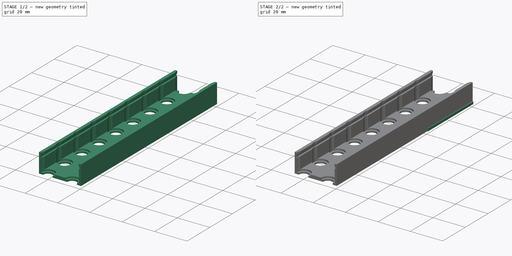
[diagram: build sequence overview — one tinted view per stage of 2, left to right]
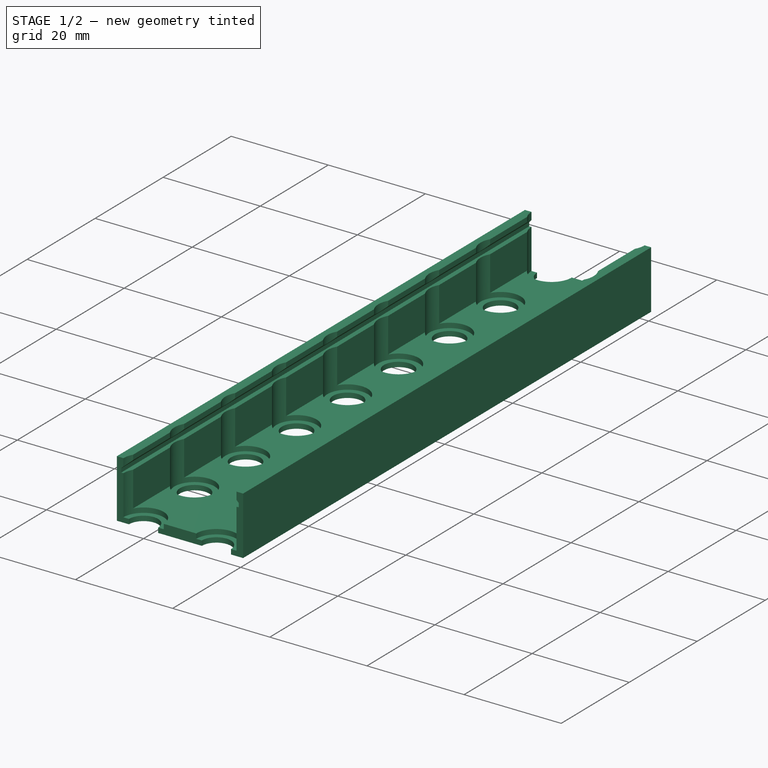
[diagram: stage 1 of 2 — iso view after this stage's code; geometry added in this stage tinted green]
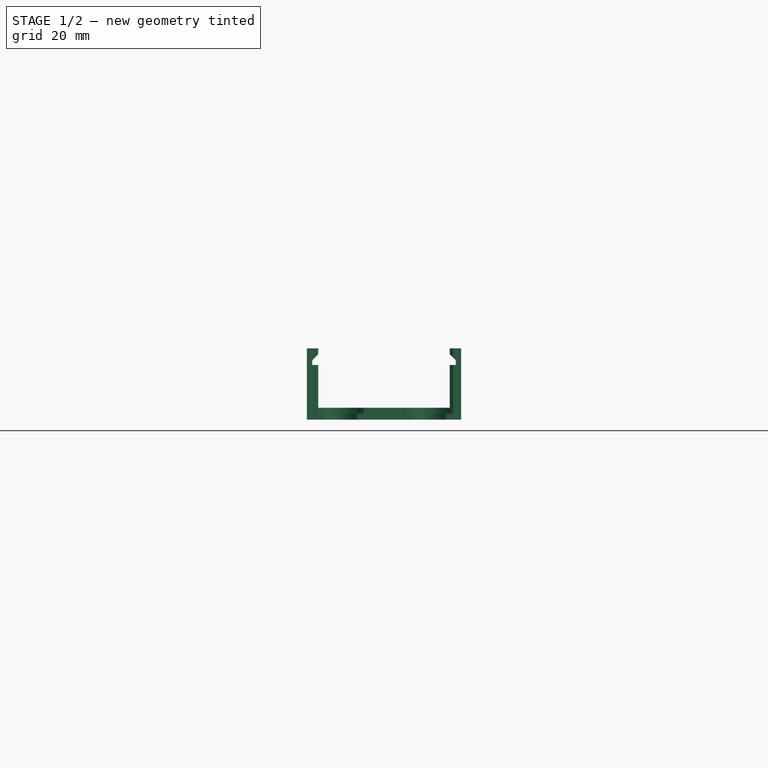
[diagram: stage 1 of 2 — front view after this stage's code; geometry added in this stage tinted green]
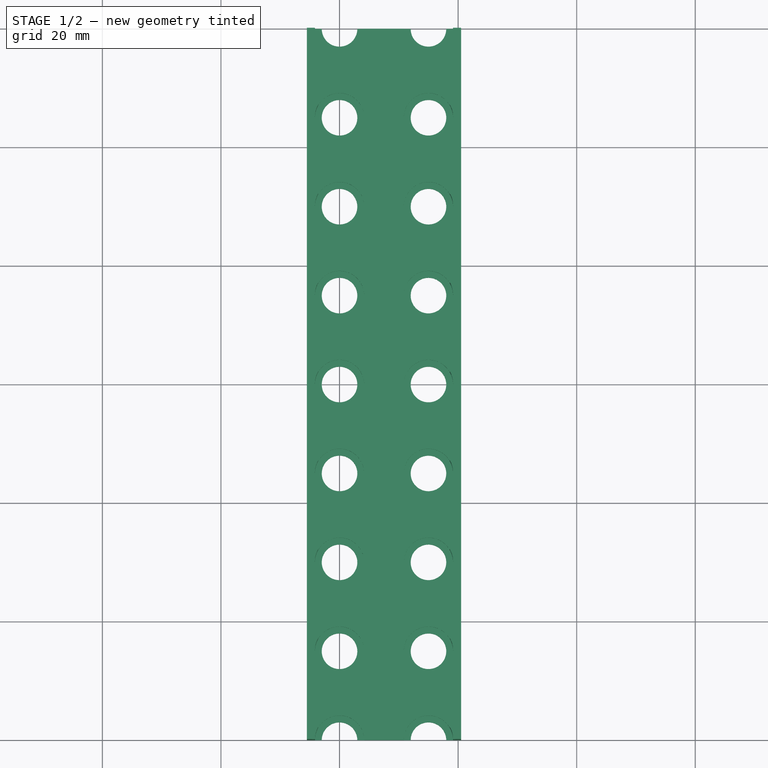
[diagram: stage 1 of 2 — top view after this stage's code; geometry added in this stage tinted green]
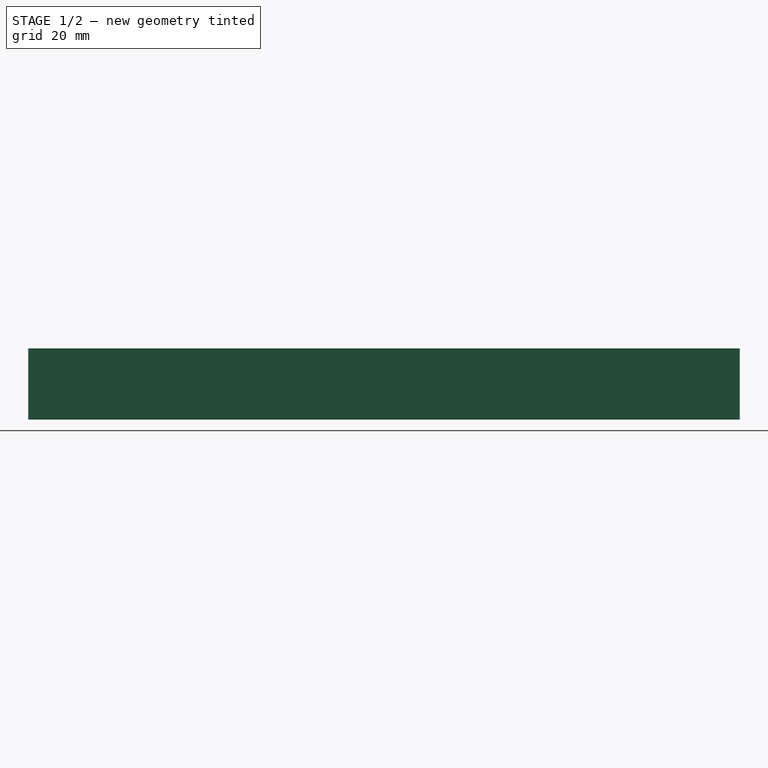
[diagram: stage 1 of 2 — right view after this stage's code; geometry added in this stage tinted green]
FCSTD DOCUMENT  (FreeCAD 0.20R29603 (Git))
Label: 24mm-strip-feeder
License: Other
objects: Sketcher::SketchObject×3, PartDesign::Pad×2, PartDesign::Plane×1, PartDesign::Hole×1, PartDesign::Body×1, Image::ImagePlane×1
note: 11 computed .brp shape members not serialized (recipe doc carries the construction recipe); baked Part::Feature solids carry a one-line shape summary decoded from their .brp

FEATURE [Sketcher::SketchObject] Sketch019
  AttachmentOffset = pos=(7.5,0,0) rot=(0,0,1;0rad)
  FullyConstrained = true
  MapMode = 5
  Placement = pos=(7.5,0,0) rot=(1,0,0;1.5708rad)
  Support = -> [XZ_Plane003]
  sketch-geometry (25):
    g0: LineSegment StartX=13 StartY=-6 StartZ=0 EndX=13 EndY=6 EndZ=0
    g1: LineSegment StartX=13 StartY=6 StartZ=0 EndX=-13 EndY=6 EndZ=0
    g2: LineSegment StartX=-13 StartY=6 StartZ=0 EndX=-13 EndY=-6 EndZ=0
    g3: LineSegment StartX=-13 StartY=-6 StartZ=0 EndX=13 EndY=-6 EndZ=0
    g4: GeomPoint X=0 Y=0 Z=0
    g5: LineSegment StartX=-11.1 StartY=-4 StartZ=0 EndX=-11.1 EndY=3.2 EndZ=0
    g6: LineSegment StartX=-11.1 StartY=6 StartZ=0 EndX=11.1 EndY=6 EndZ=0
    g7: LineSegment StartX=11.1 StartY=6 StartZ=0 EndX=11.1 EndY=4 EndZ=0
    g8: LineSegment StartX=11.1 StartY=-4 StartZ=0 EndX=-11.1 EndY=-4 EndZ=0
    g9: GeomPoint X=0 Y=1 Z=0
    g10: LineSegment StartX=-11.1 StartY=6 StartZ=0 EndX=-13 EndY=6 EndZ=0
    g11: LineSegment StartX=11.1 StartY=6 StartZ=0 EndX=13 EndY=6 EndZ=0
    g12: LineSegment StartX=-12.1 StartY=3.2 StartZ=0 EndX=-12.1 EndY=4 EndZ=0
    g13: LineSegment StartX=-12.1 StartY=4 StartZ=0 EndX=-11.1 EndY=4 EndZ=0
    g14: LineSegment StartX=12.1 StartY=4 StartZ=0 EndX=12.1 EndY=3.2 EndZ=0
    g15: LineSegment StartX=12.1 StartY=3.2 StartZ=0 EndX=11.1 EndY=3.2 EndZ=0
    g16: GeomPoint X=-4e-16 Y=3.6 Z=0
    g17: LineSegment StartX=11.1 StartY=4 StartZ=0 EndX=12.1 EndY=4 EndZ=0
    g18: LineSegment StartX=-11.1 StartY=3.2 StartZ=0 EndX=-12.1 EndY=3.2 EndZ=0
    g19: LineSegment StartX=-11.1 StartY=4 StartZ=0 EndX=-11.1 EndY=6 EndZ=0
    g20: LineSegment StartX=11.1 StartY=3.2 StartZ=0 EndX=11.1 EndY=-4 EndZ=0
    g21: LineSegment StartX=-12.1 StartY=4 StartZ=0 EndX=-11.1 EndY=5 EndZ=0
    g22: LineSegment StartX=-11.1 StartY=6 StartZ=0 EndX=-11.1 EndY=5 EndZ=0
    g23: LineSegment StartX=11.1 StartY=6 StartZ=0 EndX=11.1 EndY=5 EndZ=0
    g24: LineSegment StartX=11.1 StartY=5 StartZ=0 EndX=12.1 EndY=4 EndZ=0
  constraints (62):
    c: Coincident(g0,g1)
    c: Coincident(g1,g2)
    c: Coincident(g2,g3)
    c: Coincident(g3,g0)
    c: Horizontal(g1)
    c: Horizontal(g3)
    c: Vertical(g0)
    c: Vertical(g2)
    c: Symmetric(g1,g0,g4)
    c: Coincident(g4,g-1)
    c: Coincident(g19,g6)
    c: Coincident(g6,g7)
    c: Coincident(g20,g8)
    c: Coincident(g8,g5)
    c: Horizontal(g6)
    c: Horizontal(g8)
    c: Vertical(g5)
    c: Vertical(g7)
    c: Symmetric(g6,g5,g9)
    c: PointOnObject(g9,g-2)
    c: PointOnObject(g7,g1)
    c: Coincident(g10,g19)
    c: Coincident(g10,g2)
    c: Coincident(g11,g7)
    c: Coincident(g11,g0)
    c: Coincident(g12,g13)
    c: Coincident(g17,g14)
    c: Coincident(g14,g15)
    c: Coincident(g18,g12)
    c: Horizontal(g15)
    c: Vertical(g12)
    c: Vertical(g14)
    c: Symmetric(g17,g12,g16)
    c: Coincident(g5,g18)
    c: Coincident(g19,g13)
    c: Coincident(g7,g17)
    c: Coincident(g20,g15)
    c: Vertical(g19)
    c: Tangent(g17,g13)
    c: Tangent(g18,g15)
    c: Symmetric(g12,g14,g-2)
    c: Vertical(g5,g13)
    c: Vertical(g15,g7)
    c: Vertical(g20)
    c: DistanceY(g2,g5) = 2
    c: DistanceX(g12,g14) = 24.2
    c: DistanceY(g14,g14) = 0.8
    c: DistanceY(g2,g13) = 10
    c: DistanceY(g2,g2) = 12
    c: DistanceX(g2,g0) = 26
    c: DistanceX(g2,g5) = 1.9
    c: DistanceX(g18,g18) = 1
    c: Coincident(g21,g12)
    c: PointOnObject(g21,g19)
    c: Coincident(g22,g10)
    c: Coincident(g22,g21)
    c: Coincident(g23,g11)
    c: PointOnObject(g23,g7)
    c: Coincident(g24,g23)
    c: Coincident(g24,g14)
    c: Horizontal(g23,g21)
    c: Angle(g12,g21) = 2.35619
FEATURE [PartDesign::Pad] Pad006
  Direction = (0,-1,-2e-16)
  Length = 120
  Length2 = 10
  Placement = pos=(0,0,0) rot=(1,0,0;1.5708rad)
  Profile = -> Sketch019
  ReferenceAxis = -> Sketch019 [N_Axis]
  Type = 0
FEATURE [PartDesign::Plane] DatumPlane003
  AttachmentOffset = pos=(0,0,-6) rot=(0,0,1;0rad)
  Length = 67.0294
  MapMode = 5
  Placement = pos=(0,0,-6) rot=(0,0,1;0rad)
  ResizeMode = 0
  Support = -> [XY_Plane005]
  Width = 162.029
FEATURE [Sketcher::SketchObject] Sketch016  label="CounterBoreHoles004"
  AttachmentOffset = pos=(-15,-200.5,6) rot=(0,0,1;0rad)
  FullyConstrained = true
  MapMode = 5
  Placement = pos=(-15,-200.5,6) rot=(0,0,1;0rad)
  Support = -> [XY_Plane005]
  sketch-geometry (166):
    g0: Circle CenterX=15 CenterY=35.5 CenterZ=0 NormalX=0 NormalY=0 NormalZ=1 AngleXU=0 Radius=3
    g1: Circle CenterX=45 CenterY=35.5 CenterZ=0 NormalX=0 NormalY=0 NormalZ=1 AngleXU=0 Radius=3
    g2: Circle CenterX=75 CenterY=35.5 CenterZ=0 NormalX=0 NormalY=0 NormalZ=1 AngleXU=0 Radius=3
    g3: Circle CenterX=15 CenterY=65.5 CenterZ=0 NormalX=0 NormalY=0 NormalZ=1 AngleXU=0 Radius=3
    g4: Circle CenterX=45 CenterY=65.5 CenterZ=0 NormalX=0 NormalY=0 NormalZ=1 AngleXU=0 Radius=3
    g5: Circle CenterX=75 CenterY=65.5 CenterZ=0 NormalX=0 NormalY=0 NormalZ=1 AngleXU=0 Radius=3
    g6: LineSegment StartX=15 StartY=35.5 StartZ=0 EndX=15 EndY=65.5 EndZ=0
    g7: Circle CenterX=30 CenterY=20.5 CenterZ=0 NormalX=0 NormalY=0 NormalZ=1 AngleXU=0 Radius=3
    g8: Circle CenterX=60 CenterY=20.5 CenterZ=0 NormalX=0 NormalY=0 NormalZ=1 AngleXU=0 Radius=3
    g9: Circle CenterX=60 CenterY=50.5 CenterZ=0 NormalX=0 NormalY=0 NormalZ=1 AngleXU=0 Radius=3
    g10: Circle CenterX=30 CenterY=50.5 CenterZ=0 NormalX=0 NormalY=0 NormalZ=1 AngleXU=0 Radius=3
    g11: LineSegment StartX=30 StartY=20.5 StartZ=0 EndX=30 EndY=50.5 EndZ=0
    g12: Circle CenterX=90 CenterY=50.5 CenterZ=0 NormalX=0 NormalY=0 NormalZ=1 AngleXU=0 Radius=3
    g13: Circle CenterX=105 CenterY=65.5 CenterZ=0 NormalX=0 NormalY=0 NormalZ=1 AngleXU=0 Radius=3
    g14: Circle CenterX=90 CenterY=20.5 CenterZ=0 NormalX=0 NormalY=0 NormalZ=1 AngleXU=0 Radius=3
    g15: Circle CenterX=105 CenterY=35.5 CenterZ=0 NormalX=0 NormalY=0 NormalZ=1 AngleXU=0 Radius=3
    g16: Circle CenterX=30 CenterY=80.5 CenterZ=0 NormalX=0 NormalY=0 NormalZ=1 AngleXU=0 Radius=3
    g17: Circle CenterX=60 CenterY=80.5 CenterZ=0 NormalX=0 NormalY=0 NormalZ=1 AngleXU=0 Radius=3
    g18: Circle CenterX=90 CenterY=80.5 CenterZ=0 NormalX=0 NormalY=0 NormalZ=1 AngleXU=0 Radius=3
    g19: LineSegment StartX=30 StartY=80.5 StartZ=0 EndX=30 EndY=50.5 EndZ=0
    g20: LineSegment StartX=15 StartY=35.5 StartZ=0 EndX=45 EndY=35.5 EndZ=0
    g21: LineSegment StartX=105 StartY=35.5 StartZ=0 EndX=75 EndY=35.5 EndZ=0
    g22: LineSegment StartX=45 StartY=35.5 StartZ=0 EndX=75 EndY=35.5 EndZ=0
    g23: LineSegment StartX=30 StartY=20.5 StartZ=0 EndX=60 EndY=20.5 EndZ=0
    g24: LineSegment StartX=90 StartY=20.5 StartZ=0 EndX=60 EndY=20.5 EndZ=0
    g25: LineSegment StartX=15 StartY=0 StartZ=0 EndX=15 EndY=80.5 EndZ=0
    g26: Circle CenterX=15 CenterY=95.5 CenterZ=0 NormalX=0 NormalY=0 NormalZ=1 AngleXU=0 Radius=3
    g27: Circle CenterX=45 CenterY=95.5 CenterZ=0 NormalX=0 NormalY=0 NormalZ=1 AngleXU=0 Radius=3
    g28: Circle CenterX=75 CenterY=95.5 CenterZ=0 NormalX=0 NormalY=0 NormalZ=1 AngleXU=0 Radius=3
    g29: Circle CenterX=105 CenterY=95.5 CenterZ=0 NormalX=0 NormalY=0 NormalZ=1 AngleXU=0 Radius=3
    g30: Circle CenterX=30 CenterY=110.5 CenterZ=0 NormalX=0 NormalY=0 NormalZ=1 AngleXU=0 Radius=3
    g31: Circle CenterX=60 CenterY=110.5 CenterZ=0 NormalX=0 NormalY=0 NormalZ=1 AngleXU=0 Radius=3
    g32: Circle CenterX=90 CenterY=110.5 CenterZ=0 NormalX=0 NormalY=0 NormalZ=1 AngleXU=0 Radius=3
    g33: Circle CenterX=15 CenterY=125.5 CenterZ=0 NormalX=0 NormalY=0 NormalZ=1 AngleXU=0 Radius=3
    g34: Circle CenterX=45 CenterY=125.5 CenterZ=0 NormalX=0 NormalY=0 NormalZ=1 AngleXU=0 Radius=3
    g35: Circle CenterX=75 CenterY=125.5 CenterZ=0 NormalX=0 NormalY=0 NormalZ=1 AngleXU=0 Radius=3
    g36: Circle CenterX=105 CenterY=125.5 CenterZ=0 NormalX=0 NormalY=0 NormalZ=1 AngleXU=0 Radius=3
    g37: LineSegment StartX=15 StartY=65.5 StartZ=0 EndX=15 EndY=95.5 EndZ=0
    g38: LineSegment StartX=15 StartY=95.5 StartZ=0 EndX=15 EndY=125.5 EndZ=0
    g39: LineSegment StartX=30 StartY=80.5 StartZ=0 EndX=30 EndY=110.5 EndZ=0
    g40: Circle CenterX=15 CenterY=155.5 CenterZ=0 NormalX=0 NormalY=0 NormalZ=1 AngleXU=0 Radius=3
    g41: Circle CenterX=45 CenterY=155.5 CenterZ=0 NormalX=0 NormalY=0 NormalZ=1 AngleXU=0 Radius=3
    g42: Circle CenterX=75 CenterY=155.5 CenterZ=0 NormalX=0 NormalY=0 NormalZ=1 AngleXU=0 Radius=3
    g43: LineSegment StartX=15 StartY=125.5 StartZ=0 EndX=15 EndY=155.5 EndZ=0
    g44: Circle CenterX=60 CenterY=140.5 CenterZ=0 NormalX=0 NormalY=0 NormalZ=1 AngleXU=0 Radius=3
    g45: Circle CenterX=30 CenterY=140.5 CenterZ=0 NormalX=0 NormalY=0 NormalZ=1 AngleXU=0 Radius=3
    g46: LineSegment StartX=30 StartY=110.5 StartZ=0 EndX=30 EndY=140.5 EndZ=0
    g47: Circle CenterX=90 CenterY=140.5 CenterZ=0 NormalX=0 NormalY=0 NormalZ=1 AngleXU=0 Radius=3
    g48: Circle CenterX=105 CenterY=155.5 CenterZ=0 NormalX=0 NormalY=0 NormalZ=1 AngleXU=0 Radius=3
    g49: Circle CenterX=30 CenterY=170.5 CenterZ=0 NormalX=0 NormalY=0 NormalZ=1 AngleXU=0 Radius=3
    g50: Circle CenterX=60 CenterY=170.5 CenterZ=0 NormalX=0 NormalY=0 NormalZ=1 AngleXU=0 Radius=3
    g51: Circle CenterX=90 CenterY=170.5 CenterZ=0 NormalX=0 NormalY=0 NormalZ=1 AngleXU=0 Radius=3
    g52: LineSegment StartX=30 StartY=170.5 StartZ=0 EndX=30 EndY=140.5 EndZ=0
    g53: Circle CenterX=15 CenterY=185.5 CenterZ=0 NormalX=0 NormalY=0 NormalZ=1 AngleXU=0 Radius=3
    g54: Circle CenterX=45 CenterY=185.5 CenterZ=0 NormalX=0 NormalY=0 NormalZ=1 AngleXU=0 Radius=3
    g55: Circle CenterX=75 CenterY=185.5 CenterZ=0 NormalX=0 NormalY=0 NormalZ=1 AngleXU=0 Radius=3
    g56: Circle CenterX=105 CenterY=185.5 CenterZ=0 NormalX=0 NormalY=0 NormalZ=1 AngleXU=0 Radius=3
    g57: Circle CenterX=30 CenterY=200.5 CenterZ=0 NormalX=0 NormalY=0 NormalZ=1 AngleXU=0 Radius=3
    g58: Circle CenterX=60 CenterY=200.5 CenterZ=0 NormalX=0 NormalY=0 NormalZ=1 AngleXU=0 Radius=3
    g59: Circle CenterX=90 CenterY=200.5 CenterZ=0 NormalX=0 NormalY=0 NormalZ=1 AngleXU=0 Radius=3
    g60: Circle CenterX=15 CenterY=215.5 CenterZ=0 NormalX=0 NormalY=0 NormalZ=1 AngleXU=0 Radius=3
    g61: Circle CenterX=45 CenterY=215.5 CenterZ=0 NormalX=0 NormalY=0 NormalZ=1 AngleXU=0 Radius=3
    g62: Circle CenterX=75 CenterY=215.5 CenterZ=0 NormalX=0 NormalY=0 NormalZ=1 AngleXU=0 Radius=3
    g63: Circle CenterX=105 CenterY=215.5 CenterZ=0 NormalX=0 NormalY=0 NormalZ=1 AngleXU=0 Radius=3
    g64: LineSegment StartX=15 StartY=155.5 StartZ=0 EndX=15 EndY=185.5 EndZ=0
    g65: LineSegment StartX=15 StartY=185.5 StartZ=0 EndX=15 EndY=215.5 EndZ=0
    g66: LineSegment StartX=30 StartY=170.5 StartZ=0 EndX=30 EndY=200.5 EndZ=0
    g67: Circle CenterX=120 CenterY=50.5 CenterZ=0 NormalX=0 NormalY=0 NormalZ=1 AngleXU=0 Radius=3
    g68: Circle CenterX=120 CenterY=20.5 CenterZ=0 NormalX=0 NormalY=0 NormalZ=1 AngleXU=0 Radius=3
    g69: Circle CenterX=120 CenterY=80.5 CenterZ=0 NormalX=0 NormalY=0 NormalZ=1 AngleXU=0 Radius=3
    g70: LineSegment StartX=120 StartY=20.5 StartZ=0 EndX=90 EndY=20.5 EndZ=0
    g71: Circle CenterX=120 CenterY=110.5 CenterZ=0 NormalX=0 NormalY=0 NormalZ=1 AngleXU=0 Radius=3
    g72: Circle CenterX=120 CenterY=140.5 CenterZ=0 NormalX=0 NormalY=0 NormalZ=1 AngleXU=0 Radius=3
    g73: Circle CenterX=120 CenterY=170.5 CenterZ=0 NormalX=0 NormalY=0 NormalZ=1 AngleXU=0 Radius=3
    g74: Circle CenterX=120 CenterY=200.5 CenterZ=0 NormalX=0 NormalY=0 NormalZ=1 AngleXU=0 Radius=3
    g75: Circle CenterX=0 CenterY=50.5 CenterZ=0 NormalX=0 NormalY=0 NormalZ=1 AngleXU=0 Radius=3
    g76: Circle CenterX=0 CenterY=20.5 CenterZ=0 NormalX=0 NormalY=0 NormalZ=1 AngleXU=0 Radius=3
    g77: Circle CenterX=0 CenterY=80.5 CenterZ=0 NormalX=0 NormalY=0 NormalZ=1 AngleXU=0 Radius=3
    g78: Circle CenterX=0 CenterY=110.5 CenterZ=0 NormalX=0 NormalY=0 NormalZ=1 AngleXU=0 Radius=3
    g79: Circle CenterX=0 CenterY=140.5 CenterZ=0 NormalX=0 NormalY=0 NormalZ=1 AngleXU=0 Radius=3
    g80: Circle CenterX=0 CenterY=170.5 CenterZ=0 NormalX=0 NormalY=0 NormalZ=1 AngleXU=0 Radius=3
    g81: Circle CenterX=0 CenterY=200.5 CenterZ=0 NormalX=0 NormalY=0 NormalZ=1 AngleXU=0 Radius=3
    g82: GeomPoint X=15 Y=5.5 Z=0
    g83: Circle CenterX=15 CenterY=20.5 CenterZ=0 NormalX=0 NormalY=0 NormalZ=1 AngleXU=0 Radius=3
    g84: Circle CenterX=45 CenterY=20.5 CenterZ=0 NormalX=0 NormalY=0 NormalZ=1 AngleXU=0 Radius=3
    g85: Circle CenterX=75 CenterY=20.5 CenterZ=0 NormalX=0 NormalY=0 NormalZ=1 AngleXU=0 Radius=3
    g86: Circle CenterX=15 CenterY=50.5 CenterZ=0 NormalX=0 NormalY=0 NormalZ=1 AngleXU=0 Radius=3
    g87: Circle CenterX=45 CenterY=50.5 CenterZ=0 NormalX=0 NormalY=0 NormalZ=1 AngleXU=0 Radius=3
    g88: Circle CenterX=75 CenterY=50.5 CenterZ=0 NormalX=0 NormalY=0 NormalZ=1 AngleXU=0 Radius=3
    g89: LineSegment StartX=15 StartY=20.5 StartZ=0 EndX=15 EndY=50.5 EndZ=0
    g90: Circle CenterX=30 CenterY=5.5 CenterZ=0 NormalX=0 NormalY=0 NormalZ=1 AngleXU=0 Radius=3
    g91: Circle CenterX=60 CenterY=5.5 CenterZ=0 NormalX=0 NormalY=0 NormalZ=1 AngleXU=0 Radius=3
    g92: Circle CenterX=60 CenterY=35.5 CenterZ=0 NormalX=0 NormalY=0 NormalZ=1 AngleXU=0 Radius=3
    g93: Circle CenterX=30 CenterY=35.5 CenterZ=0 NormalX=0 NormalY=0 NormalZ=1 AngleXU=0 Radius=3
    g94: LineSegment StartX=30 StartY=5.5 StartZ=0 EndX=30 EndY=35.5 EndZ=0
    g95: Circle CenterX=90 CenterY=35.5 CenterZ=0 NormalX=0 NormalY=0 NormalZ=1 AngleXU=0 Radius=3
    g96: Circle CenterX=105 CenterY=50.5 CenterZ=0 NormalX=0 NormalY=0 NormalZ=1 AngleXU=0 Radius=3
    g97: Circle CenterX=90 CenterY=5.5 CenterZ=0 NormalX=0 NormalY=0 NormalZ=1 AngleXU=0 Radius=3
    g98: Circle CenterX=105 CenterY=20.5 CenterZ=0 NormalX=0 NormalY=0 NormalZ=1 AngleXU=0 Radius=3
    g99: Circle CenterX=30 CenterY=65.5 CenterZ=0 NormalX=0 NormalY=0 NormalZ=1 AngleXU=0 Radius=3
    g100: Circle CenterX=60 CenterY=65.5 CenterZ=0 NormalX=0 NormalY=0 NormalZ=1 AngleXU=0 Radius=3
    g101: Circle CenterX=90 CenterY=65.5 CenterZ=0 NormalX=0 NormalY=0 NormalZ=1 AngleXU=0 Radius=3
    g102: LineSegment StartX=30 StartY=65.5 StartZ=0 EndX=30 EndY=35.5 EndZ=0
    g103: LineSegment StartX=15 StartY=20.5 StartZ=0 EndX=45 EndY=20.5 EndZ=0
    g104: LineSegment StartX=105 StartY=20.5 StartZ=0 EndX=75 EndY=20.5 EndZ=0
    g105: LineSegment StartX=45 StartY=20.5 StartZ=0 EndX=75 EndY=20.5 EndZ=0
    g106: LineSegment StartX=30 StartY=5.5 StartZ=0 EndX=60 EndY=5.5 EndZ=0
    g107: LineSegment StartX=90 StartY=5.5 StartZ=0 EndX=60 EndY=5.5 EndZ=0
    g108: LineSegment StartX=15 StartY=-9.5 StartZ=0 EndX=15 EndY=65.5 EndZ=0
    g109: Circle CenterX=15 CenterY=80.5 CenterZ=0 NormalX=0 NormalY=0 NormalZ=1 AngleXU=0 Radius=3
    g110: Circle CenterX=45 CenterY=80.5 CenterZ=0 NormalX=0 NormalY=0 NormalZ=1 AngleXU=0 Radius=3
    g111: Circle CenterX=75 CenterY=80.5 CenterZ=0 NormalX=0 NormalY=0 NormalZ=1 AngleXU=0 Radius=3
    g112: Circle CenterX=105 CenterY=80.5 CenterZ=0 NormalX=0 NormalY=0 NormalZ=1 AngleXU=0 Radius=3
    g113: Circle CenterX=30 CenterY=95.5 CenterZ=0 NormalX=0 NormalY=0 NormalZ=1 AngleXU=0 Radius=3
    g114: Circle CenterX=60 CenterY=95.5 CenterZ=0 NormalX=0 NormalY=0 NormalZ=1 AngleXU=0 Radius=3
    g115: Circle CenterX=90 CenterY=95.5 CenterZ=0 NormalX=0 NormalY=0 NormalZ=1 AngleXU=0 Radius=3
    g116: Circle CenterX=15 CenterY=110.5 CenterZ=0 NormalX=0 NormalY=0 NormalZ=1 AngleXU=0 Radius=3
    g117: Circle CenterX=45 CenterY=110.5 CenterZ=0 NormalX=0 NormalY=0 NormalZ=1 AngleXU=0 Radius=3
    g118: Circle CenterX=75 CenterY=110.5 CenterZ=0 NormalX=0 NormalY=0 NormalZ=1 AngleXU=0 Radius=3
    g119: Circle CenterX=105 CenterY=110.5 CenterZ=0 NormalX=0 NormalY=0 NormalZ=1 AngleXU=0 Radius=3
    g120: LineSegment StartX=15 StartY=50.5 StartZ=0 EndX=15 EndY=80.5 EndZ=0
    g121: LineSegment StartX=15 StartY=80.5 StartZ=0 EndX=15 EndY=110.5 EndZ=0
    g122: LineSegment StartX=30 StartY=65.5 StartZ=0 EndX=30 EndY=95.5 EndZ=0
    g123: Circle CenterX=15 CenterY=140.5 CenterZ=0 NormalX=0 NormalY=0 NormalZ=1 AngleXU=0 Radius=3
    g124: Circle CenterX=45 CenterY=140.5 CenterZ=0 NormalX=0 NormalY=0 NormalZ=1 AngleXU=0 Radius=3
    g125: Circle CenterX=75 CenterY=140.5 CenterZ=0 NormalX=0 NormalY=0 NormalZ=1 AngleXU=0 Radius=3
    g126: LineSegment StartX=15 StartY=110.5 StartZ=0 EndX=15 EndY=140.5 EndZ=0
    g127: Circle CenterX=60 CenterY=125.5 CenterZ=0 NormalX=0 NormalY=0 NormalZ=1 AngleXU=0 Radius=3
    g128: Circle CenterX=30 CenterY=125.5 CenterZ=0 NormalX=0 NormalY=0 NormalZ=1 AngleXU=0 Radius=3
    g129: LineSegment StartX=30 StartY=95.5 StartZ=0 EndX=30 EndY=125.5 EndZ=0
    g130: Circle CenterX=90 CenterY=125.5 CenterZ=0 NormalX=0 NormalY=0 NormalZ=1 AngleXU=0 Radius=3
    g131: Circle CenterX=105 CenterY=140.5 CenterZ=0 NormalX=0 NormalY=0 NormalZ=1 AngleXU=0 Radius=3
    g132: Circle CenterX=30 CenterY=155.5 CenterZ=0 NormalX=0 NormalY=0 NormalZ=1 AngleXU=0 Radius=3
    g133: Circle CenterX=60 CenterY=155.5 CenterZ=0 NormalX=0 NormalY=0 NormalZ=1 AngleXU=0 Radius=3
    g134: Circle CenterX=90 CenterY=155.5 CenterZ=0 NormalX=0 NormalY=0 NormalZ=1 AngleXU=0 Radius=3
    g135: LineSegment StartX=30 StartY=155.5 StartZ=0 EndX=30 EndY=125.5 EndZ=0
    g136: Circle CenterX=15 CenterY=170.5 CenterZ=0 NormalX=0 NormalY=0 NormalZ=1 AngleXU=0 Radius=3
    g137: Circle CenterX=45 CenterY=170.5 CenterZ=0 NormalX=0 NormalY=0 NormalZ=1 AngleXU=0 Radius=3
    g138: Circle CenterX=75 CenterY=170.5 CenterZ=0 NormalX=0 NormalY=0 NormalZ=1 AngleXU=0 Radius=3
    g139: Circle CenterX=105 CenterY=170.5 CenterZ=0 NormalX=0 NormalY=0 NormalZ=1 AngleXU=0 Radius=3
    g140: Circle CenterX=30 CenterY=185.5 CenterZ=0 NormalX=0 NormalY=0 NormalZ=1 AngleXU=0 Radius=3
    g141: Circle CenterX=60 CenterY=185.5 CenterZ=0 NormalX=0 NormalY=0 NormalZ=1 AngleXU=0 Radius=3
    g142: Circle CenterX=90 CenterY=185.5 CenterZ=0 NormalX=0 NormalY=0 NormalZ=1 AngleXU=0 Radius=3
    g143: Circle CenterX=15 CenterY=200.5 CenterZ=0 NormalX=0 NormalY=0 NormalZ=1 AngleXU=0 Radius=3
    g144: Circle CenterX=45 CenterY=200.5 CenterZ=0 NormalX=0 NormalY=0 NormalZ=1 AngleXU=0 Radius=3
    g145: Circle CenterX=75 CenterY=200.5 CenterZ=0 NormalX=0 NormalY=0 NormalZ=1 AngleXU=0 Radius=3
    g146: Circle CenterX=105 CenterY=200.5 CenterZ=0 NormalX=0 NormalY=0 NormalZ=1 AngleXU=0 Radius=3
    g147: LineSegment StartX=15 StartY=140.5 StartZ=0 EndX=15 EndY=170.5 EndZ=0
    g148: LineSegment StartX=15 StartY=170.5 StartZ=0 EndX=15 EndY=200.5 EndZ=0
    g149: LineSegment StartX=30 StartY=155.5 StartZ=0 EndX=30 EndY=185.5 EndZ=0
    g150: Circle CenterX=120 CenterY=35.5 CenterZ=0 NormalX=0 NormalY=0 NormalZ=1 AngleXU=0 Radius=3
    g151: Circle CenterX=120 CenterY=5.5 CenterZ=0 NormalX=0 NormalY=0 NormalZ=1 AngleXU=0 Radius=3
    g152: Circle CenterX=120 CenterY=65.5 CenterZ=0 NormalX=0 NormalY=0 NormalZ=1 AngleXU=0 Radius=3
    g153: LineSegment StartX=120 StartY=5.5 StartZ=0 EndX=90 EndY=5.5 EndZ=0
    g154: Circle CenterX=120 CenterY=95.5 CenterZ=0 NormalX=0 NormalY=0 NormalZ=1 AngleXU=0 Radius=3
    g155: Circle CenterX=120 CenterY=125.5 CenterZ=0 NormalX=0 NormalY=0 NormalZ=1 AngleXU=0 Radius=3
    g156: Circle CenterX=120 CenterY=155.5 CenterZ=0 NormalX=0 NormalY=0 NormalZ=1 AngleXU=0 Radius=3
    g157: Circle CenterX=120 CenterY=185.5 CenterZ=0 NormalX=0 NormalY=0 NormalZ=1 AngleXU=0 Radius=3
    g158: Circle CenterX=0 CenterY=35.5 CenterZ=0 NormalX=0 NormalY=0 NormalZ=1 AngleXU=0 Radius=3
    g159: Circle CenterX=0 CenterY=5.5 CenterZ=0 NormalX=0 NormalY=0 NormalZ=1 AngleXU=0 Radius=3
    g160: Circle CenterX=0 CenterY=65.5 CenterZ=0 NormalX=0 NormalY=0 NormalZ=1 AngleXU=0 Radius=3
    g161: Circle CenterX=0 CenterY=95.5 CenterZ=0 NormalX=0 NormalY=0 NormalZ=1 AngleXU=0 Radius=3
    g162: Circle CenterX=0 CenterY=125.5 CenterZ=0 NormalX=0 NormalY=0 NormalZ=1 AngleXU=0 Radius=3
    g163: Circle CenterX=0 CenterY=155.5 CenterZ=0 NormalX=0 NormalY=0 NormalZ=1 AngleXU=0 Radius=3
    g164: Circle CenterX=0 CenterY=185.5 CenterZ=0 NormalX=0 NormalY=0 NormalZ=1 AngleXU=0 Radius=3
    g165: GeomPoint X=15 Y=-9.5 Z=0
  constraints (461):
    c: Equal(g0,g1)
    c: Horizontal(g0,g1)
    c: Horizontal(g1,g2)
    c: Horizontal(g3,g4)
    c: Horizontal(g4,g5)
    c: Vertical(g0,g3)
    c: Vertical(g1,g4)
    c: Vertical(g2,g5)
    c: Equal(g2,g5)
    c: Coincident(g6,g0)
    c: Coincident(g6,g3)
    c: Vertical(g7,g10)
    c: Vertical(g8,g9)
    c: Equal(g8,g9)
    c: Equal(g8,g7)
    c: Equal(g7,g10)
    c: Horizontal(g7,g8)
    c: Horizontal(g10,g9)
    c: Coincident(g11,g7)
    c: Coincident(g11,g10)
    c: Equal(g7,g1)
    c: Equal(g1,g2)
    c: Horizontal(g14,g8)
    c: Horizontal(g2,g15)
    c: Horizontal(g9,g12)
    c: Horizontal(g5,g13)
    c: Vertical(g14,g12)
    c: Vertical(g15,g13)
    c: Equal(g14,g15)
    c: Equal(g15,g12)
    c: Equal(g12,g13)
    c: Equal(g13,g5)
    c: Equal(g4,g3)
    c: Equal(g3,g5)
    c: Equal(g6,g11)
    c: Horizontal(g16,g17)
    c: Horizontal(g17,g18)
    c: Coincident(g19,g16)
    c: Coincident(g19,g10)
    c: Equal(g19,g6)
    c: Vertical(g10,g16)
    c: Equal(g16,g17)
    c: Equal(g17,g18)
    c: Equal(g18,g5)
    c: Vertical(g17,g9)
    c: Vertical(g12,g18)
    c: Coincident(g20,g0)
    c: Coincident(g20,g1)
    c: Coincident(g21,g15)
    c: Coincident(g21,g2)
    c: Coincident(g22,g1)
    c: Coincident(g22,g2)
    c: Coincident(g23,g7)
    c: Coincident(g23,g8)
    c: Coincident(g24,g14)
    c: Coincident(g24,g8)
    c: Equal(g20,g22)
    c: Equal(g22,g21)
    c: Equal(g20,g23)
    c: Equal(g23,g24)
    c: PointOnObject(g25,g-1)
    c: Vertical(g25)
    c: Horizontal(g16,g25)
    c: DistanceX(g-1,g25) = 15
    c: Horizontal(g26,g27)
    c: Horizontal(g27,g28)
    c: Horizontal(g28,g29)
    c: Horizontal(g30,g31)
    c: Horizontal(g31,g32)
    c: Horizontal(g33,g34)
    c: Horizontal(g34,g35)
    c: Horizontal(g35,g36)
    c: Coincident(g37,g3)
    c: Coincident(g37,g26)
    c: Vertical(g37)
    c: Coincident(g38,g26)
    c: Coincident(g38,g33)
    c: Coincident(g39,g16)
    c: Coincident(g39,g30)
    c: Vertical(g30,g16)
    c: Vertical(g3,g33)
    c: Vertical(g4,g27)
    c: Vertical(g27,g34)
    c: Vertical(g17,g31)
    c: Equal(g37,g38)
    c: Equal(g38,g39)
    c: Equal(g39,g19)
    c: Vertical(g5,g28)
    c: Vertical(g28,g35)
    c: Vertical(g18,g32)
    c: Vertical(g13,g29)
    c: Vertical(g29,g36)
    c: Equal(g29,g28)
    c: Equal(g28,g27)
    c: Equal(g27,g30)
    c: Equal(g30,g26)
    c: Equal(g26,g33)
    c: Equal(g33,g34)
    c: Equal(g34,g31)
    c: Equal(g31,g35)
    c: Equal(g35,g32)
    c: Horizontal(g40,g41)
    c: Horizontal(g41,g42)
    c: Coincident(g43,g40)
    c: Horizontal(g45,g44)
    c: Coincident(g46,g45)
    c: Equal(g11,g46) = 30
    c: Horizontal(g44,g47)
    c: Horizontal(g42,g48)
    c: Equal(g47,g48)
    c: Equal(g48,g42)
    c: Equal(g13,g48) = 5
    c: Equal(g41,g40)
    c: Equal(g40,g42)
    c: Equal(g43,g46)
    c: Horizontal(g49,g50)
    c: Horizontal(g50,g51)
    c: Coincident(g52,g49)
    c: Coincident(g52,g45)
    c: Equal(g52,g43)
    c: Vertical(g45,g49)
    c: Equal(g49,g50)
    c: Equal(g50,g51)
    c: Equal(g51,g42)
    c: Vertical(g50,g44)
    c: Vertical(g47,g51)
    c: Horizontal(g53,g54)
    c: Horizontal(g54,g55)
    c: Horizontal(g55,g56)
    c: Horizontal(g57,g58)
    c: Horizontal(g58,g59)
    c: Horizontal(g60,g61)
    c: Horizontal(g61,g62)
    c: Horizontal(g62,g63)
    c: Coincident(g64,g40)
    c: Coincident(g64,g53)
    c: Vertical(g64)
    c: Coincident(g65,g53)
    c: Coincident(g65,g60)
    c: Coincident(g66,g49)
    c: Coincident(g66,g57)
    c: Vertical(g57,g49)
    c: Vertical(g40,g60)
    c: Vertical(g41,g54)
    c: Vertical(g54,g61)
    c: Vertical(g50,g58)
    c: Equal(g64,g65)
    c: Equal(g65,g66)
    c: Equal(g66,g52)
    c: Vertical(g42,g55)
    c: Vertical(g55,g62)
    c: Vertical(g51,g59)
    c: Vertical(g48,g56)
    c: Vertical(g56,g63)
    c: Equal(g56,g55)
    c: Equal(g55,g54)
    c: Equal(g54,g57)
    c: Equal(g57,g53)
    c: Equal(g53,g60)
    c: Equal(g60,g61)
    c: Equal(g61,g58)
    c: Equal(g58,g62)
    c: Equal(g62,g59)
    c: Diameter(g56) = 6
    c: Diameter(g63) = 6
    c: Diameter(g50) = 6
    c: Diameter(g44) = 6
    c: Diameter(g45) = 6
    c: Diameter(g30) = 6
    c: Diameter(g36) = 6
    c: Vertical(g46)
    c: Vertical(g43)
    c: Coincident(g46,g30)
    c: Coincident(g43,g33)
    c: Vertical(g41,g34)
    c: Vertical(g44,g31)
    c: Vertical(g42,g35)
    c: Vertical(g47,g32)
    c: Vertical(g48,g36)
    c: Vertical(g68,g67)
    c: Vertical(g67,g69)
    c: Coincident(g70,g68)
    c: Vertical(g69,g71)
    c: Vertical(g72,g73)
    c: Vertical(g73,g74)
    c: Vertical(g72,g71)
    c: Horizontal(g70)
    c: Coincident(g70,g14)
    c: Horizontal(g67,g12)
    c: Horizontal(g69,g18)
    c: Horizontal(g71,g32)
    c: Horizontal(g72,g47)
    c: Horizontal(g73,g51)
    c: Horizontal(g59,g74)
    c: Equal(g74,g73)
    c: Equal(g73,g72)
    c: Equal(g72,g71)
    c: Equal(g71,g69)
    c: Equal(g69,g67)
    c: Equal(g67,g68)
    c: Equal(g68,g0)
    c: Vertical(g76,g75)
    c: Vertical(g75,g77)
    c: Vertical(g77,g78)
    c: Vertical(g79,g80)
    c: Vertical(g80,g81)
    c: Vertical(g79,g78)
    c: Equal(g81,g80)
    c: Equal(g80,g79)
    c: Equal(g79,g78)
    c: Equal(g78,g77)
    c: Equal(g77,g75)
    c: Equal(g75,g76)
    c: PointOnObject(g81,g-2)
    c: Horizontal(g76,g7)
    c: Equal(g81,g0)
    c: Horizontal(g75,g10)
    c: Horizontal(g77,g16)
    c: Horizontal(g78,g30)
    c: Horizontal(g79,g45)
    c: Horizontal(g80,g49)
    c: Horizontal(g81,g57)
    c: DistanceY(g7,g1) = 15
    c: DistanceX(g7,g1) = 15
    c: DistanceY(g-1,g76) = 20.5
    c: DistanceY(g0,g3) = 30
    c: PointOnObject(g3,g25)
    c: DistanceX(g75,g10) = 30
    c: DistanceX(g70,g70) = 30
    c: PointOnObject(g82,g25)
    c: DistanceY(g82,g0) = 30
    c: Equal(g83,g84)
    c: Horizontal(g83,g84)
    c: Horizontal(g84,g85)
    c: Horizontal(g86,g87)
    c: Horizontal(g87,g88)
    c: Vertical(g83,g86)
    c: Vertical(g84,g87)
    c: Vertical(g85,g88)
    c: Equal(g85,g88)
    c: Coincident(g89,g83)
    c: Coincident(g89,g86)
    c: Vertical(g90,g93)
    c: Vertical(g91,g92)
    c: Equal(g91,g92)
    c: Equal(g91,g90)
    c: Equal(g90,g93)
    c: Horizontal(g90,g91)
    c: Horizontal(g93,g92)
    c: Coincident(g94,g90)
    c: Coincident(g94,g93)
    c: Equal(g90,g84)
    c: Equal(g84,g85)
    c: Horizontal(g97,g91)
    c: Horizontal(g85,g98)
    c: Horizontal(g92,g95)
    c: Horizontal(g88,g96)
    c: Vertical(g97,g95)
    c: Vertical(g98,g96)
    c: Equal(g97,g98)
    c: Equal(g98,g95)
    c: Equal(g95,g96)
    c: Equal(g96,g88)
    c: Equal(g87,g86)
    c: Equal(g86,g88)
    c: Equal(g89,g94)
    c: Horizontal(g99,g100)
    c: Horizontal(g100,g101)
    c: Coincident(g102,g99)
    c: Coincident(g102,g93)
    c: Equal(g102,g89)
    c: Vertical(g93,g99)
    c: Equal(g99,g100)
    c: Equal(g100,g101)
    c: Equal(g101,g88)
    c: Vertical(g100,g92)
    c: Vertical(g95,g101)
    c: Coincident(g103,g83)
    c: Coincident(g103,g84)
    c: Coincident(g104,g98)
    c: Coincident(g104,g85)
    c: Coincident(g105,g84)
    c: Coincident(g105,g85)
    c: Coincident(g106,g90)
    c: Coincident(g106,g91)
    c: Coincident(g107,g97)
    c: Coincident(g107,g91)
    c: Equal(g103,g105)
    c: Equal(g105,g104)
    c: Equal(g103,g106)
    c: Equal(g106,g107)
    c: Vertical(g108)
    c: Horizontal(g99,g108)
    c: Horizontal(g109,g110)
    c: Horizontal(g110,g111)
    c: Horizontal(g111,g112)
    c: Horizontal(g113,g114)
    c: Horizontal(g114,g115)
    c: Horizontal(g116,g117)
    c: Horizontal(g117,g118)
    c: Horizontal(g118,g119)
    c: Coincident(g120,g86)
    c: Coincident(g120,g109)
    c: Vertical(g120)
    c: Coincident(g121,g109)
    c: Coincident(g121,g116)
    c: Coincident(g122,g99)
    c: Coincident(g122,g113)
    c: Vertical(g113,g99)
    c: Vertical(g86,g116)
    c: Vertical(g87,g110)
    c: Vertical(g110,g117)
    c: Vertical(g100,g114)
    c: Equal(g120,g121)
    c: Equal(g121,g122)
    c: Equal(g122,g102)
    c: Vertical(g88,g111)
    c: Vertical(g111,g118)
    c: Vertical(g101,g115)
    c: Vertical(g96,g112)
    c: Vertical(g112,g119)
    c: Equal(g112,g111)
    c: Equal(g111,g110)
    c: Equal(g110,g113)
    c: Equal(g113,g109)
    c: Equal(g109,g116)
    c: Equal(g116,g117)
    c: Equal(g117,g114)
    c: Equal(g114,g118)
    c: Equal(g118,g115)
    c: Horizontal(g123,g124)
    c: Horizontal(g124,g125)
    c: Coincident(g126,g123)
    c: Horizontal(g128,g127)
    c: Coincident(g129,g128)
    c: Equal(g94,g129) = 30
    c: Horizontal(g127,g130)
    c: Horizontal(g125,g131)
    c: Equal(g130,g131)
    c: Equal(g131,g125)
    c: Equal(g96,g131) = 5
    c: Equal(g124,g123)
    c: Equal(g123,g125)
    c: Equal(g126,g129)
    c: Horizontal(g132,g133)
    c: Horizontal(g133,g134)
    c: Coincident(g135,g132)
    c: Coincident(g135,g128)
    c: Equal(g135,g126)
    c: Vertical(g128,g132)
    c: Equal(g132,g133)
    c: Equal(g133,g134)
    c: Equal(g134,g125)
    c: Vertical(g133,g127)
    c: Vertical(g130,g134)
    c: Horizontal(g136,g137)
    c: Horizontal(g137,g138)
    c: Horizontal(g138,g139)
    c: Horizontal(g140,g141)
    c: Horizontal(g141,g142)
    c: Horizontal(g143,g144)
    c: Horizontal(g144,g145)
    c: Horizontal(g145,g146)
    c: Coincident(g147,g123)
    c: Coincident(g147,g136)
    c: Vertical(g147)
    c: Coincident(g148,g136)
    c: Coincident(g148,g143)
    c: Coincident(g149,g132)
    c: Coincident(g149,g140)
    c: Vertical(g140,g132)
    c: Vertical(g123,g143)
    c: Vertical(g124,g137)
    c: Vertical(g137,g144)
    c: Vertical(g133,g141)
    c: Equal(g147,g148)
    c: Equal(g148,g149)
    c: Equal(g149,g135)
    c: Vertical(g125,g138)
    c: Vertical(g138,g145)
    c: Vertical(g134,g142)
    c: Vertical(g131,g139)
    c: Vertical(g139,g146)
    c: Equal(g139,g138)
    c: Equal(g138,g137)
    c: Equal(g137,g140)
    c: Equal(g140,g136)
    c: Equal(g136,g143)
    c: Equal(g143,g144)
    c: Equal(g144,g141)
    c: Equal(g141,g145)
    c: Equal(g145,g142)
    c: Diameter(g139) = 6
    c: Diameter(g146) = 6
    c: Diameter(g133) = 6
    c: Diameter(g127) = 6
    c: Diameter(g128) = 6
    c: Diameter(g113) = 6
    c: Diameter(g119) = 6
    c: Vertical(g129)
    c: Vertical(g126)
    c: Coincident(g129,g113)
    c: Coincident(g126,g116)
    c: Vertical(g124,g117)
    c: Vertical(g127,g114)
    c: Vertical(g125,g118)
    c: Vertical(g130,g115)
    c: Vertical(g131,g119)
    c: Vertical(g151,g150)
    c: Vertical(g150,g152)
    c: Coincident(g153,g151)
    c: Vertical(g152,g154)
    c: Vertical(g155,g156)
    c: Vertical(g156,g157)
    c: Vertical(g155,g154)
    c: Horizontal(g153)
    c: Coincident(g153,g97)
    c: Horizontal(g150,g95)
    c: Horizontal(g152,g101)
    c: Horizontal(g154,g115)
    c: Horizontal(g155,g130)
    c: Horizontal(g156,g134)
    c: Horizontal(g142,g157)
    c: Equal(g157,g156)
    c: Equal(g156,g155)
    c: Equal(g155,g154)
    c: Equal(g154,g152)
    c: Equal(g152,g150)
    c: Equal(g150,g151)
    c: Equal(g151,g83)
    c: Vertical(g159,g158)
    c: Vertical(g158,g160)
    c: Vertical(g160,g161)
    c: Vertical(g162,g163)
    c: Vertical(g163,g164)
    c: Vertical(g162,g161)
    c: Equal(g164,g163)
    c: Equal(g163,g162)
    c: Equal(g162,g161)
    c: Equal(g161,g160)
    c: Equal(g160,g158)
    c: Equal(g158,g159)
    c: Horizontal(g159,g90)
    c: Equal(g164,g83)
    c: Horizontal(g158,g93)
    c: Horizontal(g160,g99)
    c: Horizontal(g161,g113)
    c: Horizontal(g162,g128)
    c: Horizontal(g163,g132)
    c: Horizontal(g164,g140)
    c: DistanceY(g90,g84) = 15
    c: DistanceX(g90,g84) = 15
    c: DistanceY(g83,g86) = 30
    c: PointOnObject(g86,g108)
    c: DistanceX(g158,g93) = 30
    c: DistanceX(g153,g153) = 30
    c: DistanceY(g165,g83) = 30
    c: PointOnObject(g83,g25)
    c: DistanceY(g83,g0) = 15
    c: PointOnObject(g158,g-2)
    c: Coincident(g108,g165)
FEATURE [PartDesign::Hole] Hole
  BaseFeature = -> Pad006
  CustomThreadClearance = 0
  Depth = 25
  DepthType = 0
  Diameter = 6
  DrillForDepth = false
  DrillPoint = 1
  DrillPointAngle = 118
  HoleCutCountersinkAngle = 90
  HoleCutCustomValues = false
  HoleCutDepth = 11
  HoleCutDiameter = 8.3
  HoleCutType = 1
  ModelThread = false
  Placement = pos=(0,0,0) rot=(1,0,0;1.5708rad)
  Profile = -> Sketch016
  Tapered = false
  TaperedAngle = 90
  ThreadClass = 0
  ThreadDepth = 25
  ThreadDepthType = 0
  ThreadDirection = 0
  ThreadFit = 0
  ThreadSize = 0
  ThreadType = 0
  Threaded = false
  UseCustomThreadClearance = false
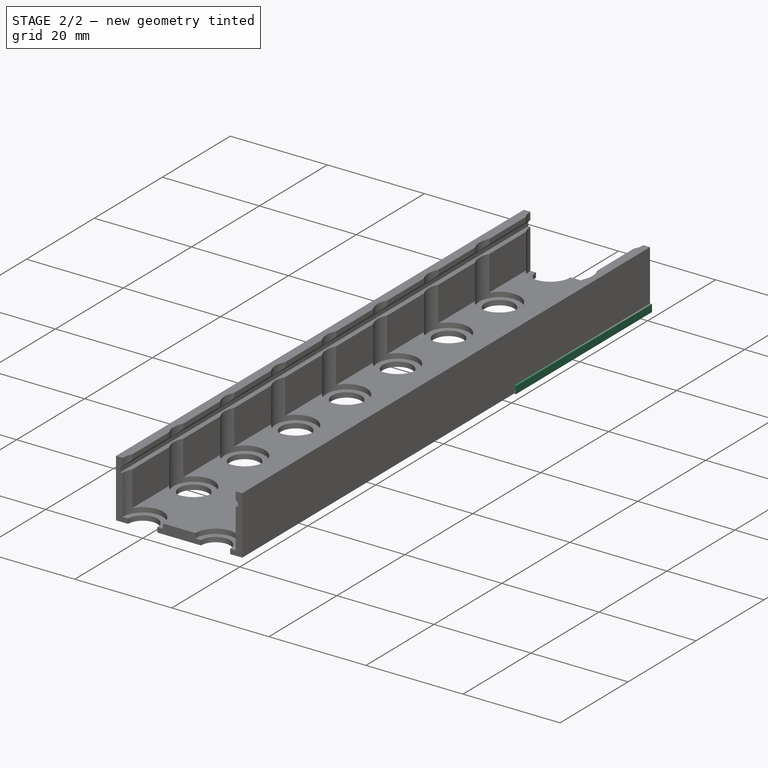
[diagram: stage 2 of 2 — iso view after this stage's code; geometry added in this stage tinted green]
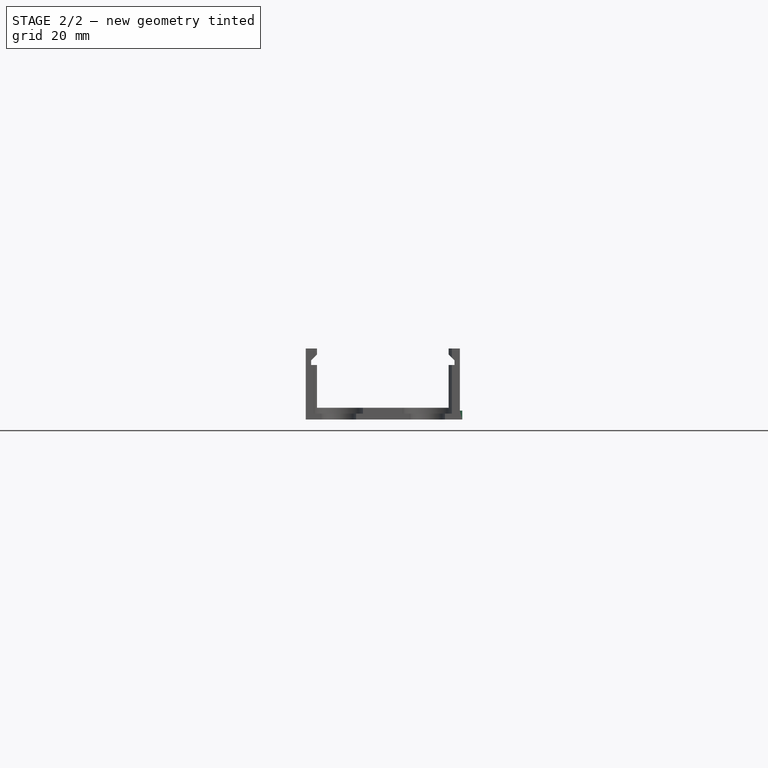
[diagram: stage 2 of 2 — front view after this stage's code; geometry added in this stage tinted green]
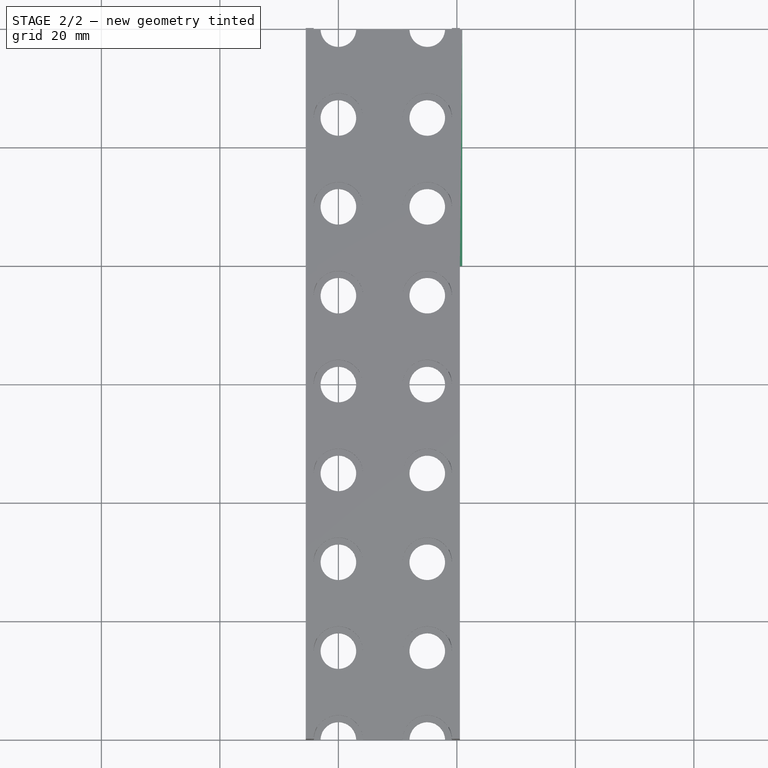
[diagram: stage 2 of 2 — top view after this stage's code; geometry added in this stage tinted green]
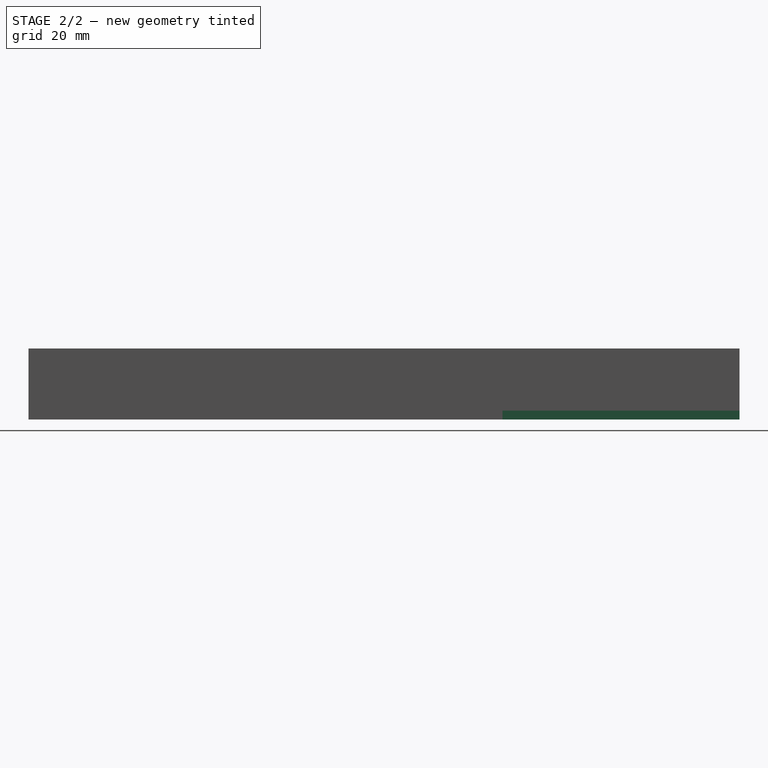
[diagram: stage 2 of 2 — right view after this stage's code; geometry added in this stage tinted green]
FEATURE [Sketcher::SketchObject] Sketch
  FullyConstrained = true
  MapMode = 5
  Placement = pos=(20.5,0,0) rot=(0.707107,0,0.707107;3.14159rad)
  Support = -> [Hole]
  sketch-geometry (4):
    g0: LineSegment StartX=-4.5 StartY=0 StartZ=0 EndX=-6 EndY=0 EndZ=0
    g1: LineSegment StartX=-6 StartY=0 StartZ=0 EndX=-6 EndY=40 EndZ=0
    g2: LineSegment StartX=-6 StartY=40 StartZ=0 EndX=-4.5 EndY=40 EndZ=0
    g3: LineSegment StartX=-4.5 StartY=40 StartZ=0 EndX=-4.5 EndY=0 EndZ=0
  constraints (12):
    c: Coincident(g0,g1)
    c: Coincident(g1,g2)
    c: Coincident(g2,g3)
    c: Coincident(g3,g0)
    c: Horizontal(g0)
    c: Horizontal(g2)
    c: Vertical(g1)
    c: Vertical(g3)
    c: PointOnObject(g0,g-1)
    c: DistanceX(g0,g-1) = 4.5
    c: DistanceX(g0,g0) = 1.5
    c: DistanceY(g1,g1) = 40
FEATURE [PartDesign::Pad] Pad  label="Sticker Indexing Bump"
  BaseFeature = -> Hole
  Direction = (1,0,-2e-16)
  Length = 0.4
  Length2 = 10
  Placement = pos=(0,0,0) rot=(1,0,0;1.5708rad)
  Profile = -> Sketch
  ReferenceAxis = -> Sketch [N_Axis]
  Type = 0
FEATURE [PartDesign::Body] Body003  label="Body"
  Group = -> [Sketch019,Pad006,DatumPlane003,Sketch016,Hole,Sketch,Pad]
  Origin = -> Origin003
  Placement = pos=(-48.5,-156,9) rot=(0,0,1;3.14159rad)
  Tip = -> Pad
FEATURE [Image::ImagePlane] ImagePlane
  Placement = pos=(-69.15,-95.89,8.97) rot=(-0.57735,0.57735,0.57735;4.18879rad)
  XSize = 119.973
  YSize = 12.0227
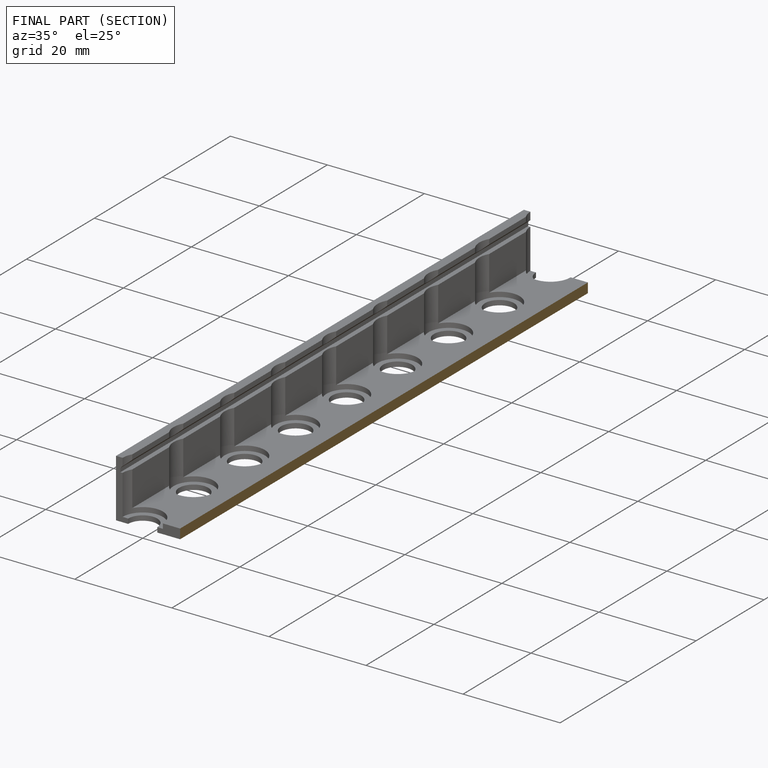
[diagram: finished part — half-section view (interior)]
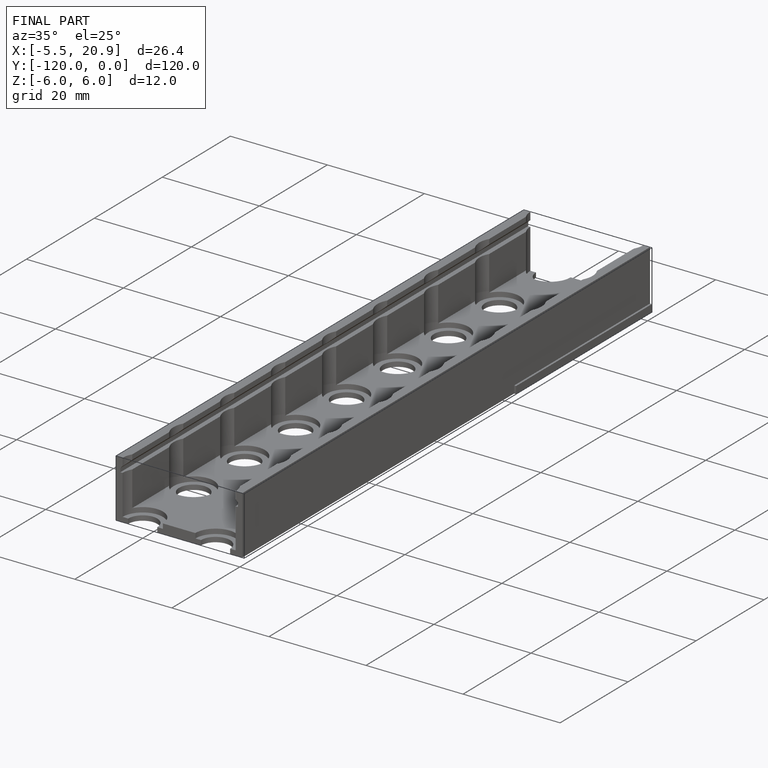
[diagram: finished part — iso view with bounding-box wireframe]
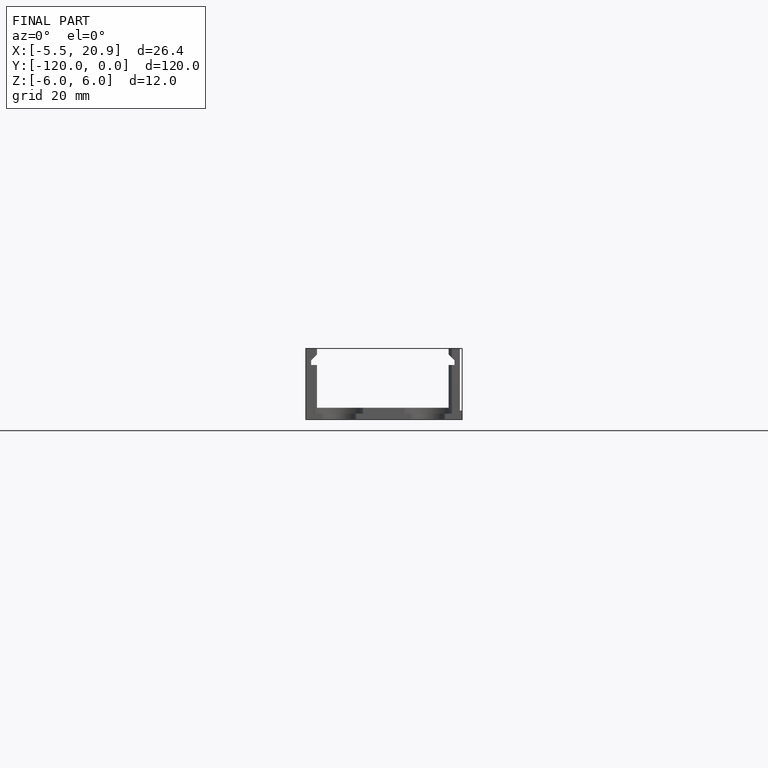
[diagram: finished part — front view with bounding-box wireframe]
